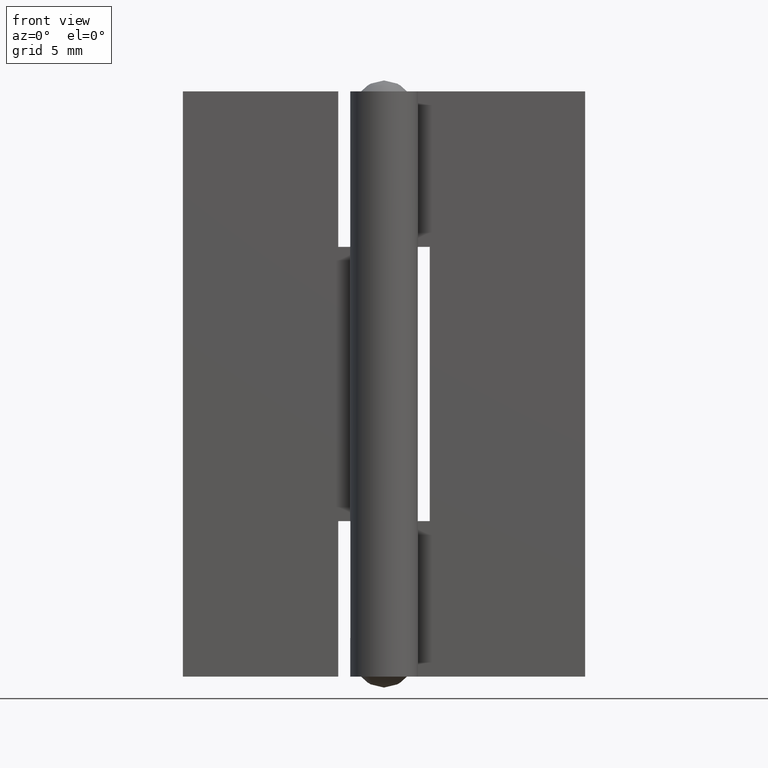
[diagram: clean part render]
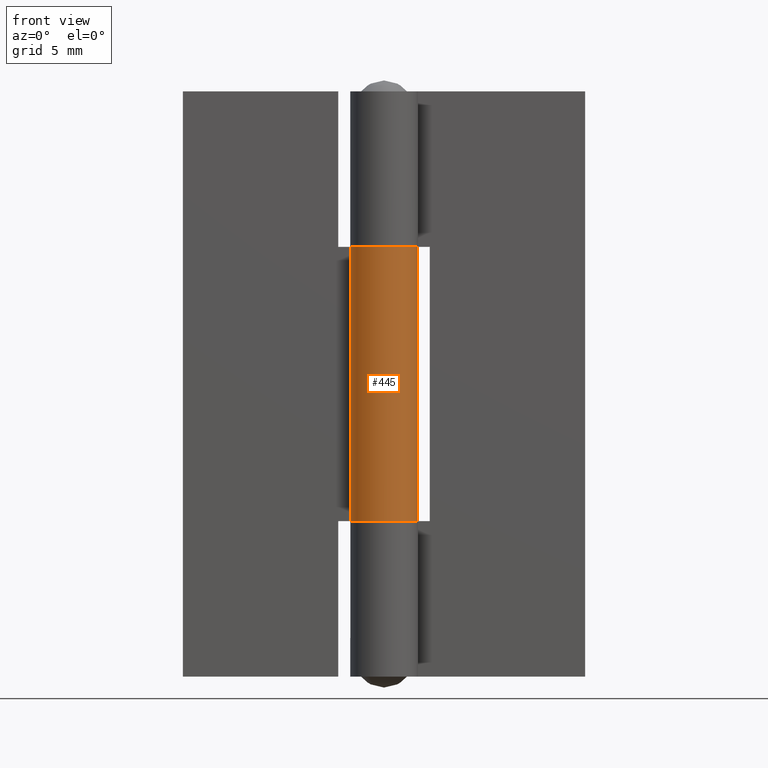
[diagram: same view with one face highlighted and labeled with its STEP entity id]
A machine part, front view. The second image highlights one B-rep face of the part: STEP entity #445.
In plain terms, the highlighted face is a freeform B-spline surface patch.
Its self-contained STEP definition (entity closure, byte-faithful):
#19=CARTESIAN_POINT('',(-1.556439526610650,0.999998000000000,8.500000000000000));
#20=VERTEX_POINT('',#19);
#26=CARTESIAN_POINT('',(-1.556439526610650,0.999998000000000,23.500000000000000));
#27=VERTEX_POINT('',#26);
#28=CARTESIAN_POINT('',(-1.556439526610650,0.999998000000000,23.500000000000000));
#29=CARTESIAN_POINT('',(-1.556439526610650,0.999998000000000,8.500000000000000));
#30=QUASI_UNIFORM_CURVE('',1,(#28,#29),.UNSPECIFIED.,.F.,.U.);
#31=EDGE_CURVE('',#27,#20,#30,.T.);
#226=CARTESIAN_POINT('',(0.002720293357384,1.849998000000000,8.500000000000000));
#227=VERTEX_POINT('',#226);
#233=CARTESIAN_POINT('',(0.002720293357384,1.849998000000000,8.500000000000000));
#234=CARTESIAN_POINT('',(0.155403818533499,1.849812774101389,8.499999999999988));
#235=CARTESIAN_POINT('',(0.441609210737540,1.813708954748082,8.500000000000018));
#236=CARTESIAN_POINT('',(0.789309851418472,1.683870933272533,8.499999999999991));
#237=CARTESIAN_POINT('',(1.096895005147428,1.502507932745372,8.499999999999982));
#238=CARTESIAN_POINT('',(1.358357976546923,1.276278030976169,8.500000000000036));
#239=CARTESIAN_POINT('',(1.589246241637749,0.970003048100226,8.499999999999961));
#240=CARTESIAN_POINT('',(1.767225490048891,0.601627438053352,8.500000000000002));
#241=CARTESIAN_POINT('',(1.858818576484424,0.187989685976300,8.500000000000027));
#242=CARTESIAN_POINT('',(1.848710477988793,-0.221435639283378,8.500000000000000));
#243=CARTESIAN_POINT('',(1.773251896822619,-0.557938914576916,8.500000000000014));
#244=CARTESIAN_POINT('',(1.639527638210041,-0.882576467558855,8.499999999999913));
#245=CARTESIAN_POINT('',(1.426827483315712,-1.202492780300623,8.500000000000050));
#246=CARTESIAN_POINT('',(1.133605976008404,-1.479509418656844,8.500000000000055));
#247=CARTESIAN_POINT('',(0.849450327424744,-1.651969375130170,8.500000000000572));
#248=CARTESIAN_POINT('',(0.566653367099170,-1.768482123744480,8.499999999999435));
#249=CARTESIAN_POINT('',(0.287461322606968,-1.837162833705624,8.500000000000190));
#250=CARTESIAN_POINT('',(-0.088357426508445,-1.861976278306540,8.499999999999995));
#251=CARTESIAN_POINT('',(-0.475514027911422,-1.805185266589426,8.500000000000002));
#252=CARTESIAN_POINT('',(-0.873819002779975,-1.647109605981547,8.500000000000002));
#253=CARTESIAN_POINT('',(-1.181474170643728,-1.439132634525828,8.500000000000002));
#254=CARTESIAN_POINT('',(-1.432957322419761,-1.185085689315919,8.500000000000002));
#255=CARTESIAN_POINT('',(-1.640119371619525,-0.885555144713583,8.500000000000011));
#256=CARTESIAN_POINT('',(-1.787510618497689,-0.530532673179020,8.499999999999986));
#257=CARTESIAN_POINT('',(-1.854971402092659,-0.152956629216095,8.499999999999993));
#258=CARTESIAN_POINT('',(-1.849713845540503,0.223981213084181,8.500000000000275));
#259=CARTESIAN_POINT('',(-1.761545175395386,0.617603985234414,8.499999999998490));
#260=CARTESIAN_POINT('',(-1.635559873845813,0.876915571727529,8.500000000003015));
#261=CARTESIAN_POINT('',(-1.556439526610650,0.999998000000000,8.500000000000000));
#262=B_SPLINE_CURVE_WITH_KNOTS('',3,(#233,#234,#235,#236,#237,#238,#239,#240,#241,#242,#243,#244,#245,#246,#247,#248,#249,#250,#251,#252,#253,#254,#255,#256,#257,#258,#259,#260,#261),.UNSPECIFIED.,.F.,.U.,(4,1,1,1,1,1,1,1,1,1,1,1,1,1,1,1,1,1,1,1,1,1,1,1,1,1,4),(0.000000168186167,0.458041385542705,0.858837556216001,1.106954923098080,1.526838533587265,1.889459159211994,2.252097628612443,2.748299404447746,3.149085459474175,3.473544455801216,3.778916581826539,4.198803063340590,4.618678170898301,4.981283467912880,5.191229732114297,5.534771925806708,5.840135153927959,6.317277640202104,6.698995184750890,7.118864177962428,7.424217560917438,7.767754035878864,8.206731399387891,8.569355849418102,8.912900558965168,9.332786454515436,9.771737291602936),.UNSPECIFIED.);
#263=EDGE_CURVE('',#227,#20,#262,.T.);
#307=CARTESIAN_POINT('',(0.002720293357384,1.849997999999965,23.500000000000000));
#308=VERTEX_POINT('',#307);
#309=CARTESIAN_POINT('',(0.002720293357384,1.849997999999965,23.500000000000000));
#310=CARTESIAN_POINT('',(0.174493297828550,1.849804496578025,23.500000000000028));
#311=CARTESIAN_POINT('',(0.498846338470457,1.803763383678485,23.499999999999911));
#312=CARTESIAN_POINT('',(0.911497439247150,1.627430894961497,23.500000000000242));
#313=CARTESIAN_POINT('',(1.227579138554143,1.399066040207901,23.499999999999510));
#314=CARTESIAN_POINT('',(1.437586217836198,1.175568527214086,23.500000000000661));
#315=CARTESIAN_POINT('',(1.611484192921336,0.923948381367343,23.499999999999929));
#316=CARTESIAN_POINT('',(1.758876320818675,0.618896237396793,23.499999999999819));
#317=CARTESIAN_POINT('',(1.840342970718049,0.276081076582420,23.499999999999869));
#318=CARTESIAN_POINT('',(1.857036557698473,-0.074206451350440,23.499999999999961));
#319=CARTESIAN_POINT('',(1.821097590205621,-0.378928448002799,23.500000000000039));
#320=CARTESIAN_POINT('',(1.721777786689958,-0.702348656097332,23.500000000000000));
#321=CARTESIAN_POINT('',(1.564511343266995,-1.009446335014698,23.499999999999890));
#322=CARTESIAN_POINT('',(1.370056556341534,-1.255215888645558,23.500000000000419));
#323=CARTESIAN_POINT('',(1.144499262105656,-1.461801369978415,23.499999999998991));
#324=CARTESIAN_POINT('',(0.906854128394596,-1.623391608281994,23.500000000002210));
#325=CARTESIAN_POINT('',(0.633002643156703,-1.746251167288211,23.499999999999719));
#326=CARTESIAN_POINT('',(0.331650334192144,-1.828689381873861,23.499999999999851));
#327=CARTESIAN_POINT('',(0.051847777404240,-1.857312629904363,23.500000000000110));
#328=CARTESIAN_POINT('',(-0.253592179657988,-1.839580642100766,23.499999999999989));
#329=CARTESIAN_POINT('',(-0.572311586483531,-1.772490478150235,23.500000000000000));
#330=CARTESIAN_POINT('',(-0.895463792940063,-1.632531108960240,23.499999999999979));
#331=CARTESIAN_POINT('',(-1.168516795212340,-1.443785886135223,23.500000000000011));
#332=CARTESIAN_POINT('',(-1.399804802347176,-1.224209559477187,23.500000000000000));
#333=CARTESIAN_POINT('',(-1.597338470967554,-0.956657255536286,23.500000000000000));
#334=CARTESIAN_POINT('',(-1.733375253222448,-0.667600804929432,23.500000000000000));
#335=CARTESIAN_POINT('',(-1.826642441996967,-0.349537632319398,23.499999999999989));
#336=CARTESIAN_POINT('',(-1.861727179620513,-0.031327280618602,23.500000000000028));
#337=CARTESIAN_POINT('',(-1.835314467962557,0.273942862148933,23.500000000000028));
#338=CARTESIAN_POINT('',(-1.758767160052250,0.615846249560866,23.500000000000611));
#339=CARTESIAN_POINT('',(-1.656250349125835,0.844820282398868,23.499999999996700));
#340=CARTESIAN_POINT('',(-1.556439526610650,0.999998000000000,23.500000000000000));
#341=B_SPLINE_CURVE_WITH_KNOTS('',3,(#309,#310,#311,#312,#313,#314,#315,#316,#317,#318,#319,#320,#321,#322,#323,#324,#325,#326,#327,#328,#329,#330,#331,#332,#333,#334,#335,#336,#337,#338,#339,#340),.UNSPECIFIED.,.F.,.U.,(4,1,1,1,1,1,1,1,1,1,1,1,1,1,1,1,1,1,1,1,1,1,1,1,1,1,1,1,1,4),(0.000000168186153,0.515304025147236,0.973356953662032,1.335980617541829,1.679527316531681,1.889459159211993,2.252097628612442,2.691037128880972,2.939154667642834,3.301776592846419,3.607144860584189,3.950683856956265,4.332397559305572,4.542346983513370,4.866801596907063,5.191229732114296,5.439345564211040,5.801965300328194,6.030993577545107,6.355447742326402,6.775326741696983,7.080705527980550,7.347870345792435,7.729588596880729,8.073131890106662,8.302158655634914,8.722041859898329,9.027408600558498,9.218260834129639,9.771737291602936),.UNSPECIFIED.);
#342=EDGE_CURVE('',#308,#27,#341,.T.);
#413=CARTESIAN_POINT('',(-1.523091009574475,1.050092270495015,23.875000000000000));
#414=CARTESIAN_POINT('',(-1.523091009574475,1.050092270495015,8.115624999999998));
#415=CARTESIAN_POINT('',(-2.843237923349737,-0.864695555474520,23.875000000000007));
#416=CARTESIAN_POINT('',(-2.843237923349737,-0.864695555474520,8.115625000000000));
#417=CARTESIAN_POINT('',(-0.680557545167275,-1.720273649079105,23.875000000000000));
#418=CARTESIAN_POINT('',(-0.680557545167275,-1.720273649079105,8.115624999999998));
#419=CARTESIAN_POINT('',(1.482122833015185,-2.575851742683690,23.875000000000007));
#420=CARTESIAN_POINT('',(1.482122833015185,-2.575851742683690,8.115625000000000));
#421=CARTESIAN_POINT('',(1.829275284228578,-0.276137528254423,23.875000000000000));
#422=CARTESIAN_POINT('',(1.829275284228578,-0.276137528254423,8.115624999999998));
#423=CARTESIAN_POINT('',(2.176427735441970,2.023576686174843,23.875000000000007));
#424=CARTESIAN_POINT('',(2.176427735441970,2.023576686174843,8.115625000000000));
#425=CARTESIAN_POINT('',(-0.142437262577510,1.844508505328553,23.875000000000000));
#426=CARTESIAN_POINT('',(-0.142437262577510,1.844508505328553,8.115624999999998));
#434=(BOUNDED_SURFACE()B_SPLINE_SURFACE(1,2,((#413,#415,#417,#419,#421,#423,#425),(#414,#416,#418,#420,#422,#424,#426)),.UNSPECIFIED.,.F.,.F.,.U.)B_SPLINE_SURFACE_WITH_KNOTS((2,2),(3,2,2,3),(0.0,15.759375000000009),(0.0,3.569336282050022,7.138672564100045,10.708008846150070),.UNSPECIFIED.)GEOMETRIC_REPRESENTATION_ITEM()RATIONAL_B_SPLINE_SURFACE(((1.0,0.622514636637620,1.0,0.622514636637620,1.0,0.622514636637620,1.0),(1.0,0.622514636637620,1.0,0.622514636637620,1.0,0.622514636637620,1.0)))REPRESENTATION_ITEM('')SURFACE());
#435=ORIENTED_EDGE('',*,*,#263,.F.);
#436=CARTESIAN_POINT('',(0.002720293357384,1.849997999999965,23.500000000000000));
#437=CARTESIAN_POINT('',(0.002720293357384,1.849998000000000,8.500000000000000));
#438=QUASI_UNIFORM_CURVE('',1,(#436,#437),.UNSPECIFIED.,.F.,.U.);
#439=EDGE_CURVE('',#308,#227,#438,.T.);
#440=ORIENTED_EDGE('',*,*,#439,.F.);
#441=ORIENTED_EDGE('',*,*,#342,.T.);
#442=ORIENTED_EDGE('',*,*,#31,.T.);
#443=EDGE_LOOP('',(#435,#440,#441,#442));
#444=FACE_OUTER_BOUND('',#443,.T.);
#445=ADVANCED_FACE('',(#444),#434,.T.);